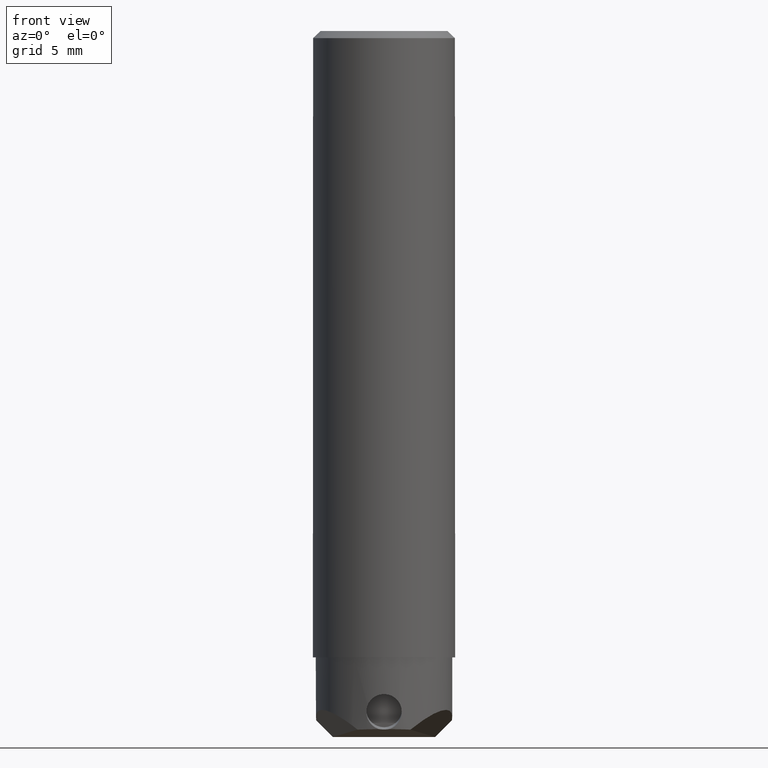
[diagram: clean part render]
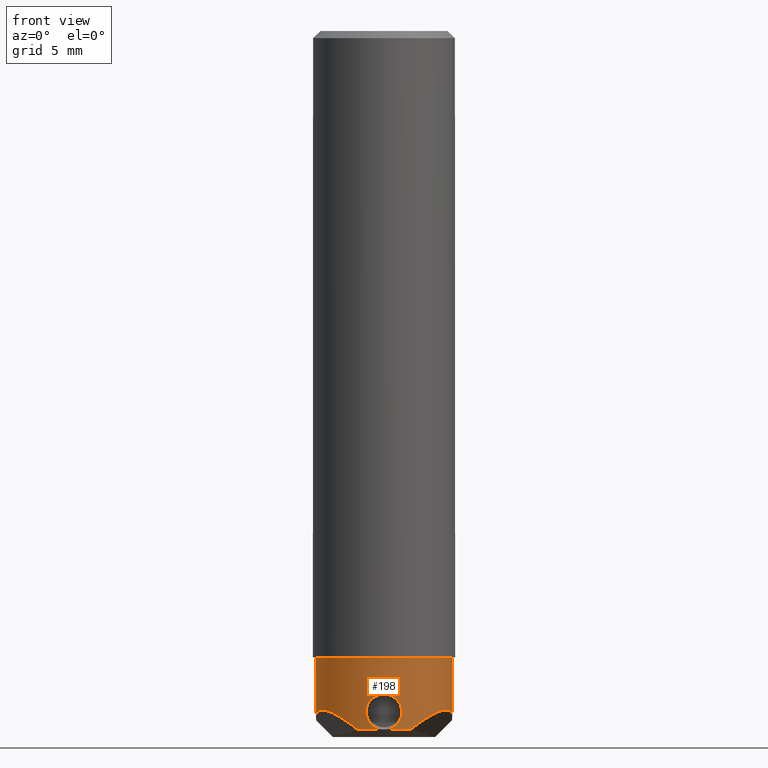
[diagram: same view with one face highlighted and labeled with its STEP entity id]
A machine part, front view. The second image highlights one B-rep face of the part: STEP entity #198.
In plain terms, the highlighted cylindrical surface (partial cylindrical patch) has radius 4.8 mm, axis along (0, 0, -1).
Its self-contained STEP definition (entity closure, byte-faithful):
#58=CYLINDRICAL_SURFACE('',#1250,4.8);
#85=ELLIPSE('',#1242,4.8264397419046,4.8);
#86=ELLIPSE('',#1243,7.13756226163195,4.8);
#87=ELLIPSE('',#1244,6.78822509938269,4.8);
#88=ELLIPSE('',#1247,6.78822509938269,4.8);
#89=ELLIPSE('',#1248,7.13756226164256,4.8);
#90=ELLIPSE('',#1249,4.8264397419046,4.8);
#105=FACE_OUTER_BOUND('',#289,.T.);
#162=B_SPLINE_CURVE_WITH_KNOTS('',3,(#1807,#1808,#1809,#1810),
 .UNSPECIFIED.,.F.,.F.,(4,4),(0.,1.),.UNSPECIFIED.);
#163=B_SPLINE_CURVE_WITH_KNOTS('',3,(#1815,#1816,#1817,#1818),
 .UNSPECIFIED.,.F.,.F.,(4,4),(0.,1.),.UNSPECIFIED.);
#164=B_SPLINE_CURVE_WITH_KNOTS('',3,(#1822,#1823,#1824,#1825),
 .UNSPECIFIED.,.F.,.F.,(4,4),(0.,1.),.UNSPECIFIED.);
#165=B_SPLINE_CURVE_WITH_KNOTS('',3,(#1853,#1854,#1855,#1856),
 .UNSPECIFIED.,.F.,.F.,(4,4),(0.,1.),.UNSPECIFIED.);
#166=B_SPLINE_CURVE_WITH_KNOTS('',3,(#1858,#1859,#1860,#1861,#1862,#1863,
#1864,#1865,#1866,#1867,#1868,#1869,#1870,#1871,#1872,#1873,#1874,#1875,
#1876,#1877,#1878,#1879,#1880,#1881,#1882,#1883,#1884,#1885),
 .UNSPECIFIED.,.F.,.F.,(4,3,3,3,3,3,3,3,3,4),(0.,0.116768244975752,0.233456595986502,
0.351309684815188,0.46913127856888,0.584175087640566,0.698227169770968,
0.815902735061136,0.937786072024945,1.),.UNSPECIFIED.);
#167=B_SPLINE_CURVE_WITH_KNOTS('',3,(#1902,#1903,#1904,#1905,#1906,#1907,
#1908,#1909,#1910,#1911,#1912,#1913,#1914,#1915,#1916,#1917,#1918,#1919,
#1920,#1921,#1922,#1923,#1924,#1925,#1926,#1927,#1928,#1929),
 .UNSPECIFIED.,.F.,.F.,(4,3,3,3,3,3,3,3,3,4),(0.,0.118320234961183,0.236375246905242,
0.358067322357484,0.478736666006277,0.594391381757408,0.70834983083926,
0.824729513945483,0.942944202764308,1.),.UNSPECIFIED.);
#198=ADVANCED_FACE('',(#105),#58,.T.);
#289=EDGE_LOOP('',(#555,#556,#557,#558,#559,#560,#561,#562,#563,#564,#565,
#566,#567,#568));
#555=ORIENTED_EDGE('',*,*,#982,.T.);
#556=ORIENTED_EDGE('',*,*,#983,.T.);
#557=ORIENTED_EDGE('',*,*,#984,.T.);
#558=ORIENTED_EDGE('',*,*,#985,.T.);
#559=ORIENTED_EDGE('',*,*,#967,.F.);
#560=ORIENTED_EDGE('',*,*,#965,.F.);
#561=ORIENTED_EDGE('',*,*,#986,.T.);
#562=ORIENTED_EDGE('',*,*,#987,.T.);
#563=ORIENTED_EDGE('',*,*,#962,.F.);
#564=ORIENTED_EDGE('',*,*,#981,.F.);
#565=ORIENTED_EDGE('',*,*,#988,.T.);
#566=ORIENTED_EDGE('',*,*,#989,.T.);
#567=ORIENTED_EDGE('',*,*,#990,.T.);
#568=ORIENTED_EDGE('',*,*,#991,.T.);
#847=VERTEX_POINT('',#1806);
#848=VERTEX_POINT('',#1811);
#849=VERTEX_POINT('',#1814);
#850=VERTEX_POINT('',#1819);
#851=VERTEX_POINT('',#1826);
#860=VERTEX_POINT('',#1852);
#861=VERTEX_POINT('',#1886);
#862=VERTEX_POINT('',#1887);
#863=VERTEX_POINT('',#1889);
#864=VERTEX_POINT('',#1891);
#865=VERTEX_POINT('',#1894);
#866=VERTEX_POINT('',#1897);
#867=VERTEX_POINT('',#1899);
#868=VERTEX_POINT('',#1901);
#962=EDGE_CURVE('',#847,#848,#162,.T.);
#965=EDGE_CURVE('',#849,#850,#163,.T.);
#967=EDGE_CURVE('',#850,#851,#164,.T.);
#981=EDGE_CURVE('',#860,#847,#165,.T.);
#982=EDGE_CURVE('',#861,#862,#166,.T.);
#983=EDGE_CURVE('',#862,#863,#85,.T.);
#984=EDGE_CURVE('',#863,#864,#86,.T.);
#985=EDGE_CURVE('',#864,#851,#87,.T.);
#986=EDGE_CURVE('',#849,#865,#1115,.T.);
#987=EDGE_CURVE('',#865,#848,#1116,.T.);
#988=EDGE_CURVE('',#860,#866,#88,.T.);
#989=EDGE_CURVE('',#866,#867,#89,.T.);
#990=EDGE_CURVE('',#867,#868,#90,.T.);
#991=EDGE_CURVE('',#868,#861,#167,.T.);
#1115=CIRCLE('',#1245,4.8);
#1116=CIRCLE('',#1246,4.8);
#1242=AXIS2_PLACEMENT_3D('',#1888,#1441,#1442);
#1243=AXIS2_PLACEMENT_3D('',#1890,#1443,#1444);
#1244=AXIS2_PLACEMENT_3D('',#1892,#1445,#1446);
#1245=AXIS2_PLACEMENT_3D('',#1893,#1447,#1448);
#1246=AXIS2_PLACEMENT_3D('',#1895,#1449,#1450);
#1247=AXIS2_PLACEMENT_3D('',#1896,#1451,#1452);
#1248=AXIS2_PLACEMENT_3D('',#1898,#1453,#1454);
#1249=AXIS2_PLACEMENT_3D('',#1900,#1455,#1456);
#1250=AXIS2_PLACEMENT_3D('',#1930,#1457,#1458);
#1441=DIRECTION('',(0.,0.104528463267103,0.994521895368332));
#1442=DIRECTION('',(0.,0.994521895368331,-0.104528463267103));
#1443=DIRECTION('',(-0.672498511963596,0.309016994374998,0.672498511964296));
#1444=DIRECTION('',(-0.611073072575783,0.280791646184469,-0.740098474127469));
#1445=DIRECTION('',(-0.707106781185698,0.,0.707106781187398));
#1446=DIRECTION('',(-0.707106781187398,0.,-0.707106781185698));
#1447=DIRECTION('',(0.,0.,-1.));
#1448=DIRECTION('',(0.891125910214602,0.453756115269201,0.));
#1449=DIRECTION('',(0.,0.,-1.));
#1450=DIRECTION('',(0.,-1.,0.));
#1451=DIRECTION('',(0.707106781185698,0.,0.707106781187398));
#1452=DIRECTION('',(0.707106781187398,0.,-0.707106781185698));
#1453=DIRECTION('',(0.672498511964596,0.309016994374998,0.672498511963296));
#1454=DIRECTION('',(0.611073072575033,0.280791646183706,-0.740098474128378));
#1455=DIRECTION('',(0.,0.104528463267103,0.994521895368332));
#1456=DIRECTION('',(0.,0.994521895368331,-0.104528463267103));
#1457=DIRECTION('',(0.,0.,-1.));
#1458=DIRECTION('',(0.,1.,0.));
#1806=CARTESIAN_POINT('',(-4.038647588876,2.5940943801,-48.80259150825));
#1807=CARTESIAN_POINT('',(-4.038647588876,2.594094380099,-48.80259150825));
#1808=CARTESIAN_POINT('',(-4.12770294901,2.455447452585,-47.21784987515));
#1809=CARTESIAN_POINT('',(-4.206765151542,2.316756821336,-45.63260870607));
#1810=CARTESIAN_POINT('',(-4.27740436903,2.178029353292,-44.04694649049));
#1811=CARTESIAN_POINT('',(-4.27740436903,2.178029353292,-44.04694649049));
#1814=CARTESIAN_POINT('',(4.27740436903,2.178029353292,-44.04694649049));
#1815=CARTESIAN_POINT('',(4.27740436903,2.178029353292,-44.04694649049));
#1816=CARTESIAN_POINT('',(4.206765151542,2.316756821337,-45.63260870607));
#1817=CARTESIAN_POINT('',(4.12770294901,2.455447452585,-47.21784987515));
#1818=CARTESIAN_POINT('',(4.038647588876,2.594094380099,-48.80259150825));
#1819=CARTESIAN_POINT('',(4.038647588876,2.594094380099,-48.80259150825));
#1822=CARTESIAN_POINT('',(4.038647588876,2.5940943801,-48.80259150825));
#1823=CARTESIAN_POINT('',(4.076995953239,2.534391259635,-48.90104885638));
#1824=CARTESIAN_POINT('',(4.114514721896,2.473072519644,-48.99880955703));
#1825=CARTESIAN_POINT('',(4.151132681353,2.409999473403,-49.09581380914));
#1826=CARTESIAN_POINT('',(4.15113268135299,2.40999947340008,-49.0958138091405));
#1852=CARTESIAN_POINT('',(-4.15113268135267,2.40999947340004,-49.0958138091402));
#1853=CARTESIAN_POINT('',(-4.151132681353,2.409999473403,-49.09581380914));
#1854=CARTESIAN_POINT('',(-4.114514721896,2.473072519644,-48.99880955703));
#1855=CARTESIAN_POINT('',(-4.076995953239,2.534391259635,-48.90104885638));
#1856=CARTESIAN_POINT('',(-4.038647588876,2.5940943801,-48.80259150825));
#1858=CARTESIAN_POINT('',(2.4594693814812E-36,-4.8,-46.6370176301112));
#1859=CARTESIAN_POINT('',(0.138887661223149,-4.8,-46.6370176301112));
#1860=CARTESIAN_POINT('',(0.279684514793657,-4.79364820565206,-46.6603747124348));
#1861=CARTESIAN_POINT('',(0.410680718741032,-4.78239912044722,-46.7051322265913));
#1862=CARTESIAN_POINT('',(0.541625483934072,-4.77115445246145,-46.7498721656524));
#1863=CARTESIAN_POINT('',(0.666385831324576,-4.75479182760565,-46.8171807296347));
#1864=CARTESIAN_POINT('',(0.775011595962333,-4.73701984649884,-46.9017929993192));
#1865=CARTESIAN_POINT('',(0.884689132659826,-4.71907578767883,-46.9872245297147));
#1866=CARTESIAN_POINT('',(0.980969906176766,-4.69931904328497,-47.0927004151048));
#1867=CARTESIAN_POINT('',(1.05590886545172,-4.68241993715434,-47.2099534333322));
#1868=CARTESIAN_POINT('',(1.13079268751505,-4.66553326473776,-47.3271201812866));
#1869=CARTESIAN_POINT('',(1.18642218607795,-4.65117875153033,-47.4594326589094));
#1870=CARTESIAN_POINT('',(1.21793485343828,-4.64291230724642,-47.5956655882366));
#1871=CARTESIAN_POINT('',(1.24872146427784,-4.63483632306248,-47.7287596907057));
#1872=CARTESIAN_POINT('',(1.25734775620002,-4.63241648444022,-47.8692614665684));
#1873=CARTESIAN_POINT('',(1.24348957276161,-4.63613348410431,-48.0053541250951));
#1874=CARTESIAN_POINT('',(1.22973921724176,-4.63982156249319,-48.1403878722453));
#1875=CARTESIAN_POINT('',(1.19360810929912,-4.64957265367591,-48.2746667502131));
#1876=CARTESIAN_POINT('',(1.13842926570213,-4.66304394221124,-48.3979980385103));
#1877=CARTESIAN_POINT('',(1.0815094505516,-4.67694026919609,-48.5252206056128));
#1878=CARTESIAN_POINT('',(1.00286734583138,-4.6950506106322,-48.644222357724));
#1879=CARTESIAN_POINT('',(0.908463666240736,-4.71324662702053,-48.7460820902385));
#1880=CARTESIAN_POINT('',(0.810806702727247,-4.73206970379288,-48.8514520527738));
#1881=CARTESIAN_POINT('',(0.69343144124916,-4.75139260246524,-48.9414119552999));
#1882=CARTESIAN_POINT('',(0.565569565356446,-4.76656386370124,-49.0078588760129));
#1883=CARTESIAN_POINT('',(0.49959516661769,-4.77439195812865,-49.042144276657));
#1884=CARTESIAN_POINT('',(0.430140387529199,-4.78122249079024,-49.0706589426309));
#1885=CARTESIAN_POINT('',(0.358861348867955,-4.78656646588018,-49.0925708030356));
#1886=CARTESIAN_POINT('',(2.4594693814812E-36,-4.8,-46.6370176301112));
#1887=CARTESIAN_POINT('',(0.358861348849868,-4.78656646588165,-49.0925708030492));
#1888=CARTESIAN_POINT('',(0.,0.,-49.5956592109907));
#1889=CARTESIAN_POINT('',(1.85864411823002,-4.42554426503322,-49.1305157653819));
#1890=CARTESIAN_POINT('',(0.,0.,-53.0227233234174));
#1891=CARTESIAN_POINT('',(4.7751323867137,0.487965869040172,-48.471814103785));
#1892=CARTESIAN_POINT('',(0.,0.,-53.2469464904909));
#1893=CARTESIAN_POINT('',(0.,0.,-44.04694649049));
#1894=CARTESIAN_POINT('',(0.,-4.8,-44.04694649049));
#1895=CARTESIAN_POINT('',(0.,0.,-44.04694649049));
#1896=CARTESIAN_POINT('',(0.,0.,-53.2469464904909));
#1897=CARTESIAN_POINT('',(-4.77513238671468,0.487965869048483,-48.4718141037843));
#1898=CARTESIAN_POINT('',(0.,0.,-53.0227233234234));
#1899=CARTESIAN_POINT('',(-1.8586441182293,-4.42554426503325,-49.1305157653813));
#1900=CARTESIAN_POINT('',(0.,0.,-49.5956592109907));
#1901=CARTESIAN_POINT('',(-0.358861348848027,-4.78656646588167,-49.0925708030418));
#1902=CARTESIAN_POINT('',(-0.358861348848027,-4.78656646588167,-49.0925708030418));
#1903=CARTESIAN_POINT('',(-0.493013008711649,-4.77650876670316,-49.0513312956182));
#1904=CARTESIAN_POINT('',(-0.621319947447734,-4.76097144130085,-48.9860163981163));
#1905=CARTESIAN_POINT('',(-0.733509912881008,-4.74362342600098,-48.9028840930195));
#1906=CARTESIAN_POINT('',(-0.845543764160478,-4.72629955074535,-48.8198674678716));
#1907=CARTESIAN_POINT('',(-0.944702127028568,-4.70681330515921,-48.7168953317923));
#1908=CARTESIAN_POINT('',(-1.02379357491417,-4.68954653628306,-48.6020482068772));
#1909=CARTESIAN_POINT('',(-1.10523741853988,-4.67176620652725,-48.4837852147016));
#1910=CARTESIAN_POINT('',(-1.16765182703781,-4.65597643966728,-48.3495371527733));
#1911=CARTESIAN_POINT('',(-1.20548117555541,-4.64616133333546,-48.2102246293322));
#1912=CARTESIAN_POINT('',(-1.24296972956505,-4.63643464867792,-48.0721671352464));
#1913=CARTESIAN_POINT('',(-1.2572532369457,-4.63243356578978,-47.9250952315957));
#1914=CARTESIAN_POINT('',(-1.24639424606379,-4.63535342594058,-47.7821496878277));
#1915=CARTESIAN_POINT('',(-1.23597593986146,-4.63815479095228,-47.645005227405));
#1916=CARTESIAN_POINT('',(-1.20213042289618,-4.64736862296227,-47.507838272922));
#1917=CARTESIAN_POINT('',(-1.1476101623335,-4.66079294919962,-47.3822503737123));
#1918=CARTESIAN_POINT('',(-1.09384463581833,-4.67403144000677,-47.2584010110119));
#1919=CARTESIAN_POINT('',(-1.01860278708585,-4.69158745715112,-47.1424240010825));
#1920=CARTESIAN_POINT('',(-0.927909935654019,-4.70945677879249,-47.0431257223218));
#1921=CARTESIAN_POINT('',(-0.835317802029423,-4.72770031828957,-46.9417479472211));
#1922=CARTESIAN_POINT('',(-0.724111804007678,-4.7466351411774,-46.8549671719673));
#1923=CARTESIAN_POINT('',(-0.603082366433388,-4.76196300482239,-46.7893888595199));
#1924=CARTESIAN_POINT('',(-0.480222759890811,-4.77752265158524,-46.7228188925227));
#1925=CARTESIAN_POINT('',(-0.343782350427872,-4.78968365488673,-46.6762818164052));
#1926=CARTESIAN_POINT('',(-0.20514380450588,-4.79561424840164,-46.6536471598276));
#1927=CARTESIAN_POINT('',(-0.137479597143256,-4.79850874579202,-46.6426000438465));
#1928=CARTESIAN_POINT('',(-0.0686211472139955,-4.8,-46.6370176301112));
#1929=CARTESIAN_POINT('',(-2.25731815052135E-12,-4.80000000000003,-46.6370176301111));
#1930=CARTESIAN_POINT('',(0.,0.,-43.945275105));